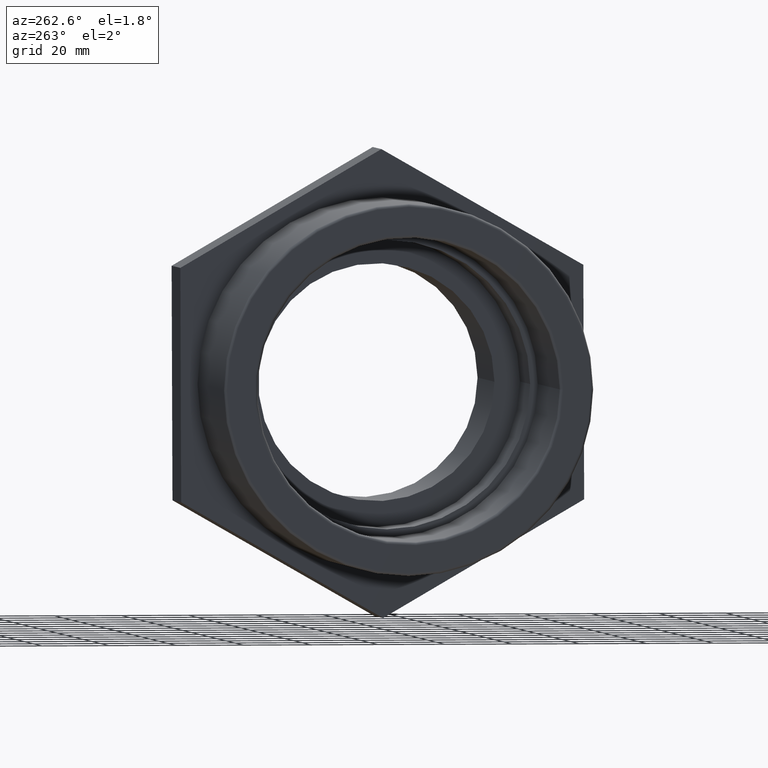
[diagram: clean part render]
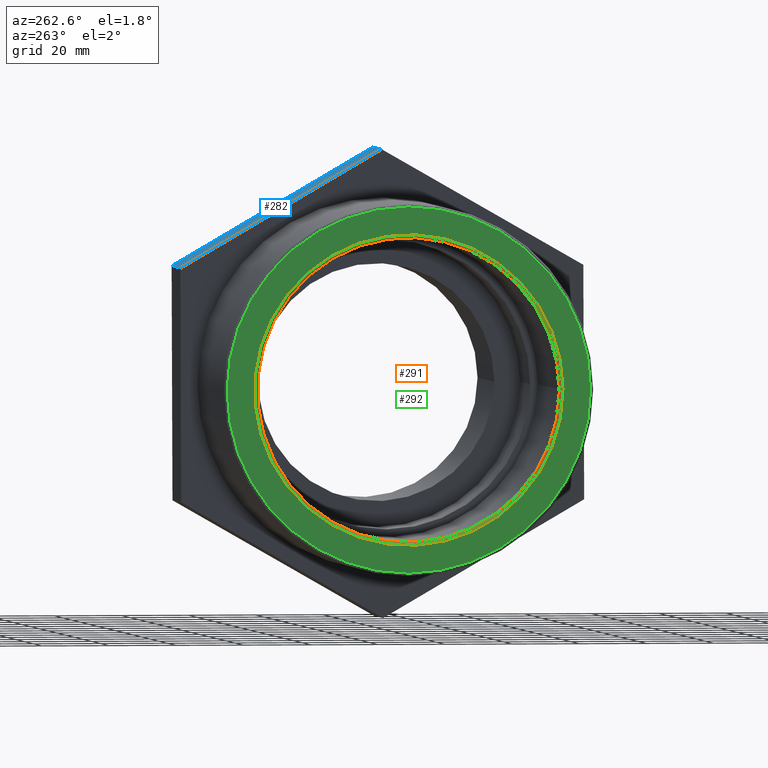
[diagram: same view with three faces highlighted in distinct colors, each labeled with its STEP entity id]
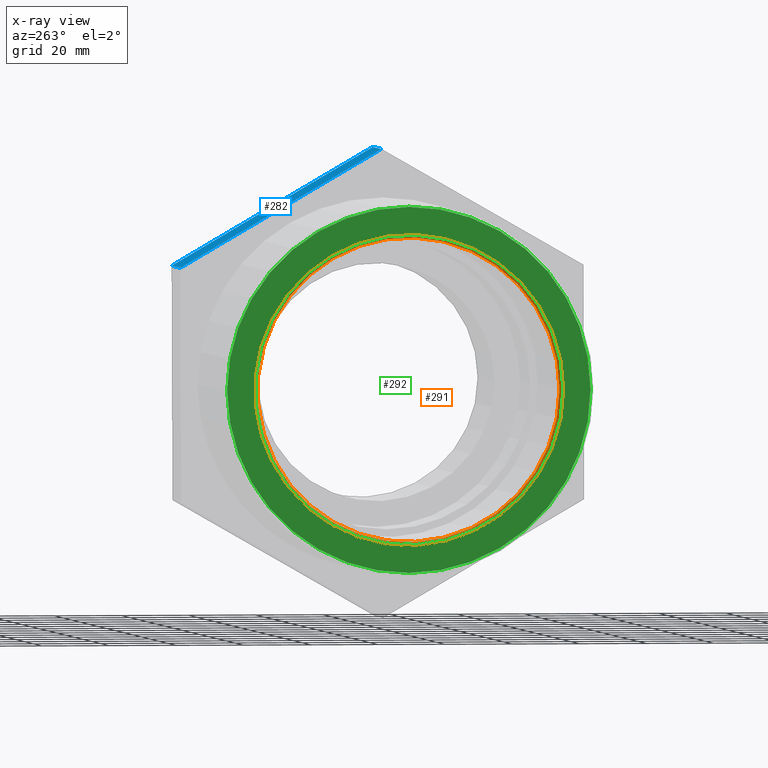
[diagram: x-ray of the same camera — body ghosted, the three highlighted faces saturated]
A machine part, auxiliary view with three faces highlighted in distinct colors.
The next image is the same camera in x-ray (body ghosted, the three faces saturated) — at least one of them is partly hidden behind the body in this view.
Their STEP definitions:

[orange] entity #291 — the highlighted toroidal blend (fillet) surface has major radius 45.9 mm and minor (blend) radius 0.9 mm.
#25=FACE_BOUND('',#91,.T.);
#41=CIRCLE('',#321,45.9);
#42=CIRCLE('',#322,45.);
#51=TOROIDAL_SURFACE('',#320,45.9,0.9);
#64=FACE_OUTER_BOUND('',#90,.T.);
#90=EDGE_LOOP('',(#238));
#91=EDGE_LOOP('',(#239));
#164=VERTEX_POINT('',#483);
#165=VERTEX_POINT('',#485);
#196=EDGE_CURVE('',#164,#164,#41,.T.);
#197=EDGE_CURVE('',#165,#165,#42,.T.);
#238=ORIENTED_EDGE('',*,*,#196,.T.);
#239=ORIENTED_EDGE('',*,*,#197,.T.);
#291=ADVANCED_FACE('',(#64,#25),#51,.T.);
#320=AXIS2_PLACEMENT_3D('',#482,#392,#393);
#321=AXIS2_PLACEMENT_3D('',#484,#394,#395);
#322=AXIS2_PLACEMENT_3D('',#486,#396,#397);
#392=DIRECTION('center_axis',(-1.,-6.73555739531044E-16,0.));
#393=DIRECTION('ref_axis',(0.,0.,1.));
#394=DIRECTION('center_axis',(-1.,-6.73555739531044E-16,0.));
#395=DIRECTION('ref_axis',(-6.73555739531044E-16,1.,6.12323399573677E-17));
#396=DIRECTION('center_axis',(1.,6.73555739531044E-16,0.));
#397=DIRECTION('ref_axis',(-6.72301720467456E-16,1.,6.12323399573677E-17));
#482=CARTESIAN_POINT('Origin',(-56.1,-2.73157468549817E-14,0.));
#483=CARTESIAN_POINT('',(-57.,-45.9,2.81056440404318E-15));
#484=CARTESIAN_POINT('Origin',(-57.,-2.79219470205597E-14,0.));
#485=CARTESIAN_POINT('',(-56.1,-45.,-8.26636589424463E-15));
#486=CARTESIAN_POINT('Origin',(-56.1,-2.73157468549817E-14,0.));

[blue] entity #282 — the highlighted planar face has unit normal (-0, 0.5031, 0.8642).
#55=FACE_OUTER_BOUND('',#76,.T.);
#76=EDGE_LOOP('',(#212,#213,#214,#215));
#115=LINE('',#442,#133);
#117=LINE('',#446,#135);
#118=LINE('',#448,#136);
#119=LINE('',#449,#137);
#133=VECTOR('',#349,20.);
#135=VECTOR('',#353,69.2820323027551);
#136=VECTOR('',#354,20.);
#137=VECTOR('',#355,69.2820323027551);
#150=VERTEX_POINT('',#439);
#151=VERTEX_POINT('',#441);
#152=VERTEX_POINT('',#445);
#153=VERTEX_POINT('',#447);
#177=EDGE_CURVE('',#151,#150,#115,.T.);
#179=EDGE_CURVE('',#150,#152,#117,.T.);
#180=EDGE_CURVE('',#153,#152,#118,.T.);
#181=EDGE_CURVE('',#153,#151,#119,.T.);
#212=ORIENTED_EDGE('',*,*,#179,.T.);
#213=ORIENTED_EDGE('',*,*,#180,.F.);
#214=ORIENTED_EDGE('',*,*,#181,.T.);
#215=ORIENTED_EDGE('',*,*,#177,.T.);
#270=PLANE('',#305);
#282=ADVANCED_FACE('',(#55),#270,.T.);
#305=AXIS2_PLACEMENT_3D('',#444,#351,#352);
#349=DIRECTION('',(1.,5.92118946466733E-16,0.));
#351=DIRECTION('center_axis',(-2.97913461821954E-16,0.503131108368766,0.864210094705921));
#352=DIRECTION('ref_axis',(5.77315972805081E-16,-0.864210094705921,0.503131108368766));
#353=DIRECTION('',(-5.8209366944984E-16,0.864210094705921,-0.503131108368766));
#354=DIRECTION('',(1.,5.92118946466733E-16,0.));
#355=DIRECTION('',(5.8209366944984E-16,-0.864210094705921,0.503131108368766));
#439=CARTESIAN_POINT('',(24.,0.250750653234666,69.2815785336182));
#441=CARTESIAN_POINT('',(3.99999999999999,0.250750653234654,69.2815785336182));
#442=CARTESIAN_POINT('',(3.99999999999999,0.250750653234654,69.2815785336182));
#444=CARTESIAN_POINT('Origin',(3.99999999999995,60.1249823510173,34.4236328310924));
#445=CARTESIAN_POINT('',(24.,60.1249823510173,34.4236328310924));
#446=CARTESIAN_POINT('',(24.,45.1564244265717,43.1381192567238));
#447=CARTESIAN_POINT('',(3.99999999999995,60.1249823510173,34.4236328310924));
#448=CARTESIAN_POINT('',(3.99999999999995,60.1249823510173,34.4236328310924));
#449=CARTESIAN_POINT('',(3.99999999999995,60.1249823510173,34.4236328310924));

[green] entity #292 — the highlighted planar face has unit normal (-1, -0, 0).
#26=FACE_BOUND('',#93,.T.);
#41=CIRCLE('',#321,45.9);
#43=CIRCLE('',#324,54.1);
#65=FACE_OUTER_BOUND('',#92,.T.);
#92=EDGE_LOOP('',(#240));
#93=EDGE_LOOP('',(#241));
#164=VERTEX_POINT('',#483);
#166=VERTEX_POINT('',#488);
#196=EDGE_CURVE('',#164,#164,#41,.T.);
#198=EDGE_CURVE('',#166,#166,#43,.T.);
#240=ORIENTED_EDGE('',*,*,#198,.F.);
#241=ORIENTED_EDGE('',*,*,#196,.F.);
#275=PLANE('',#323);
#292=ADVANCED_FACE('',(#65,#26),#275,.T.);
#321=AXIS2_PLACEMENT_3D('',#484,#394,#395);
#323=AXIS2_PLACEMENT_3D('',#487,#398,#399);
#324=AXIS2_PLACEMENT_3D('',#489,#400,#401);
#394=DIRECTION('center_axis',(-1.,-6.73555739531044E-16,0.));
#395=DIRECTION('ref_axis',(-6.73555739531044E-16,1.,6.12323399573677E-17));
#398=DIRECTION('center_axis',(-1.,-6.73555739531044E-16,0.));
#399=DIRECTION('ref_axis',(0.,0.,1.));
#400=DIRECTION('center_axis',(1.,6.73555739531044E-16,0.));
#401=DIRECTION('ref_axis',(-6.73555739531044E-16,1.,6.12323399573677E-17));
#483=CARTESIAN_POINT('',(-57.,-45.9,2.81056440404318E-15));
#484=CARTESIAN_POINT('Origin',(-57.,-2.79219470205597E-14,0.));
#487=CARTESIAN_POINT('Origin',(-57.,-45.,0.));
#488=CARTESIAN_POINT('',(-57.,-54.1,-9.93800877508077E-15));
#489=CARTESIAN_POINT('Origin',(-57.,-2.79219470205597E-14,0.));